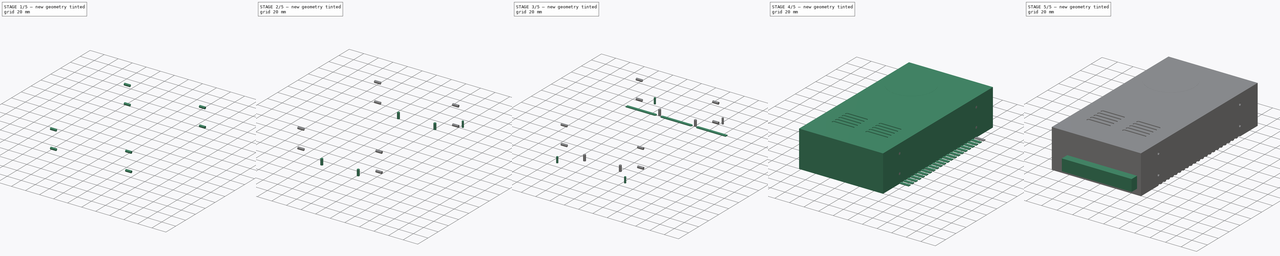
[diagram: build sequence overview — one tinted view per stage of 5, left to right]
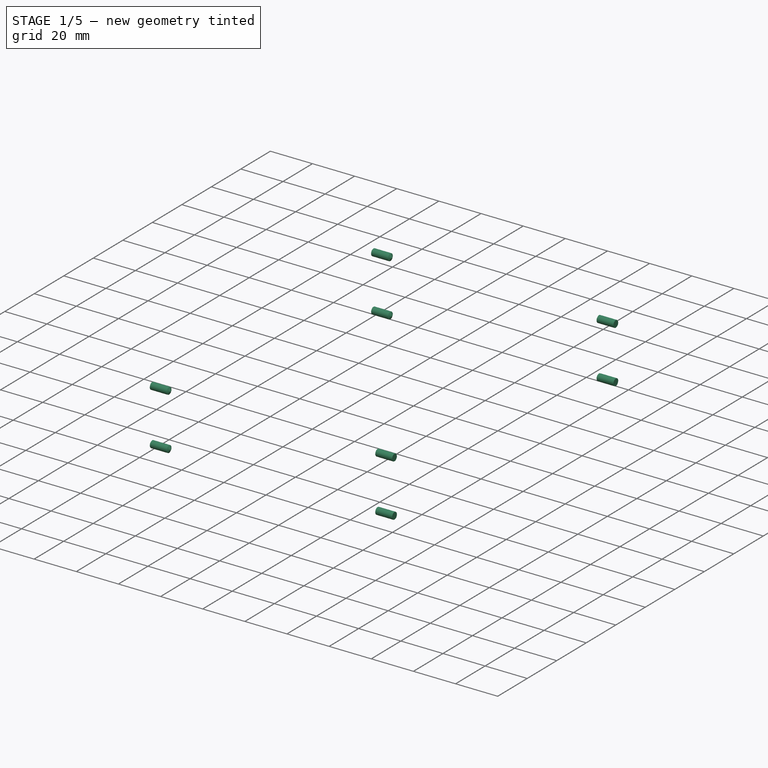
[diagram: stage 1 of 5 — iso view after this stage's code; geometry added in this stage tinted green]
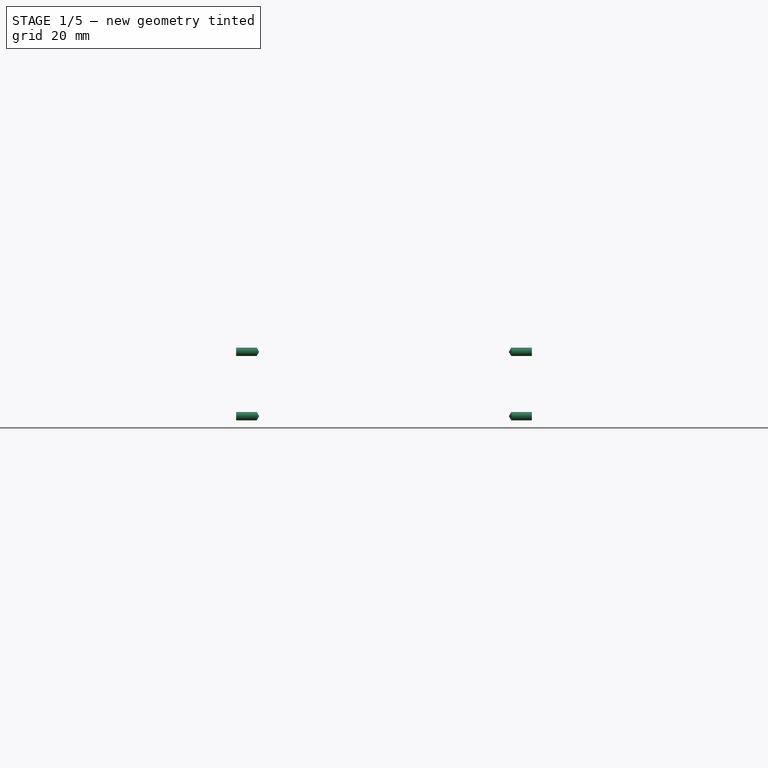
[diagram: stage 1 of 5 — front view after this stage's code; geometry added in this stage tinted green]
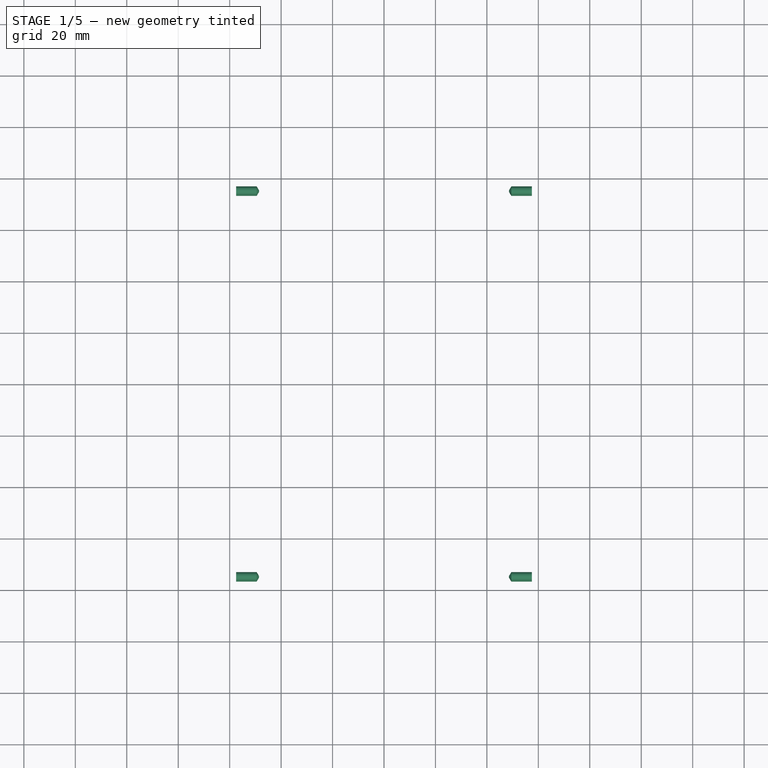
[diagram: stage 1 of 5 — top view after this stage's code; geometry added in this stage tinted green]
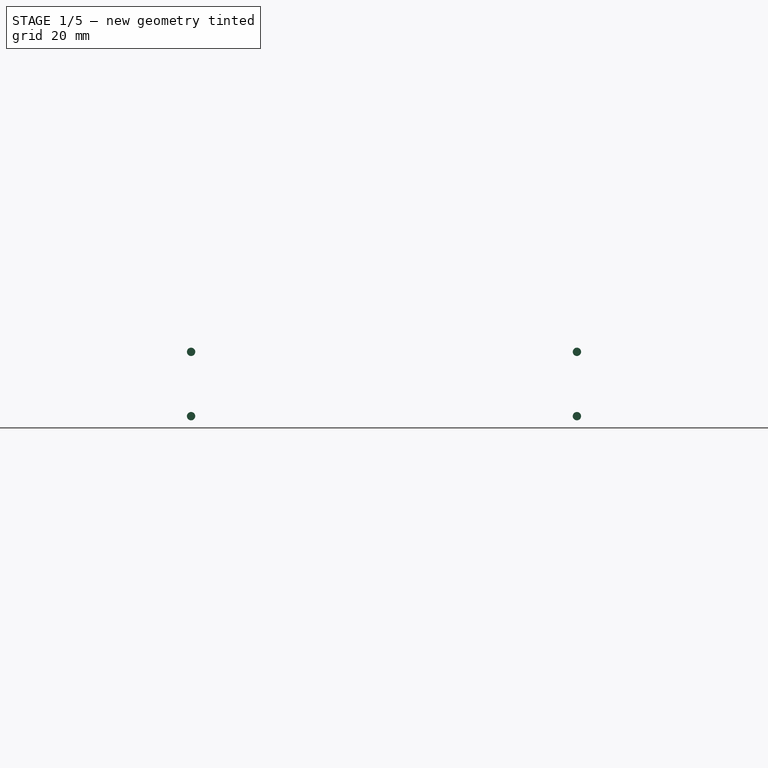
[diagram: stage 1 of 5 — right view after this stage's code; geometry added in this stage tinted green]
FCSTD DOCUMENT  (FreeCAD 0.14R3310 (Git))
Label: 37. FUENTE DE ALIMENTACIÓN
License: CC-BY 3.0
LicenseURL: http://creativecommons.org/licenses/by/3.0/
objects: Sketcher::SketchObject×7, Part::MultiFuse×7, Part::Mirroring×6, Part::Cut×5, PartDesign::Pad×4, Part::FeaturePython×3, PartDesign::Revolution×3, Part::Box×1
note: 43 computed .brp shape members not serialized (recipe doc carries the construction recipe); baked Part::Feature solids carry a one-line shape summary decoded from their .brp

FEATURE [PartDesign::Revolution] Revolution002
  Angle = 360
  Axis = (1,0,0)
  Base = (-57.5,75,12.5)
  Placement = pos=(-57.5,75,12.5) rot=(-1,0,0;4.71239rad)
  ReferenceAxis = -> Sketch006 [H_Axis]
  Sketch = -> Sketch006
FEATURE [Part::FeaturePython] Array002  # Draft array (typed FeaturePython)
  Angle = 360
  ArrayType = 0
  Axis = (0,0,1)
  Base = -> Revolution002
  Center = (0,0,0)
  IntervalX = (1,0,0)
  IntervalY = (0,1,0)
  IntervalZ = (0,0,25)
  NumberPolar = 1
  NumberX = 1
  NumberY = 1
  NumberZ = 2
FEATURE [Part::Mirroring] Part__Mirroring004  label="Array002 (Mirror #5)"
  Base = (0,0,0)
  Normal = (0,1,0)
  Source = -> Array002
FEATURE [Part::MultiFuse] Fusion005
  Shapes = -> [Array002,Part__Mirroring004]
FEATURE [Part::Mirroring] Part__Mirroring005  label="Fusion005 (Mirror #6)"
  Base = (0,0,0)
  Normal = (1,0,0)
  Source = -> Fusion005
FEATURE [Part::MultiFuse] Fusion006
  Shapes = -> [Part__Mirroring005,Fusion005]
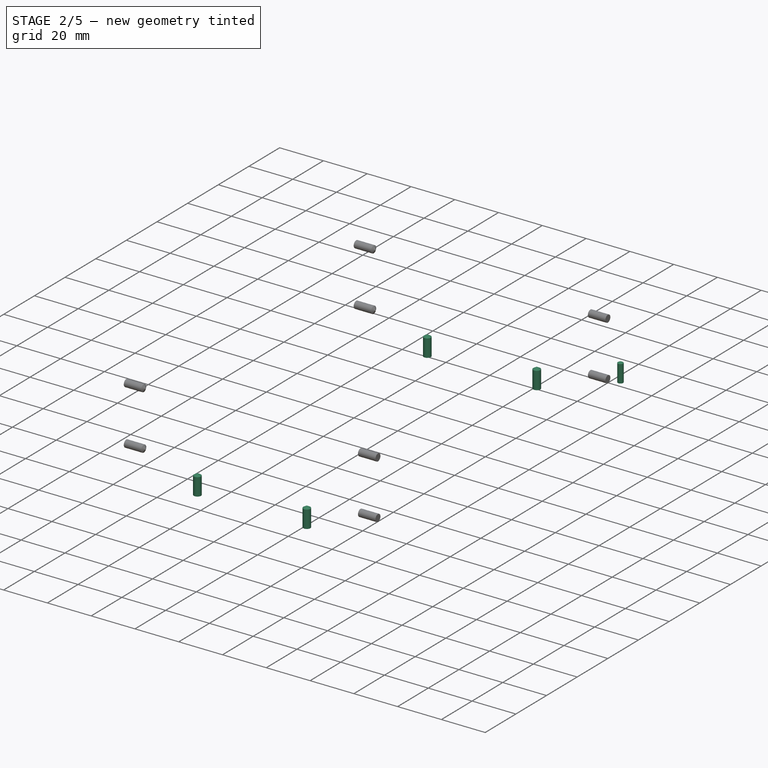
[diagram: stage 2 of 5 — iso view after this stage's code; geometry added in this stage tinted green]
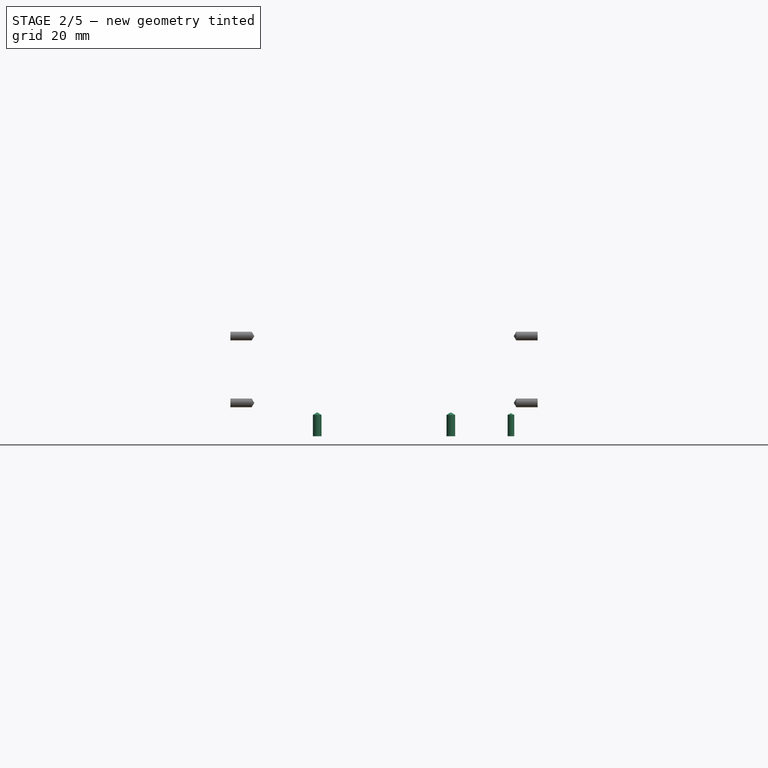
[diagram: stage 2 of 5 — front view after this stage's code; geometry added in this stage tinted green]
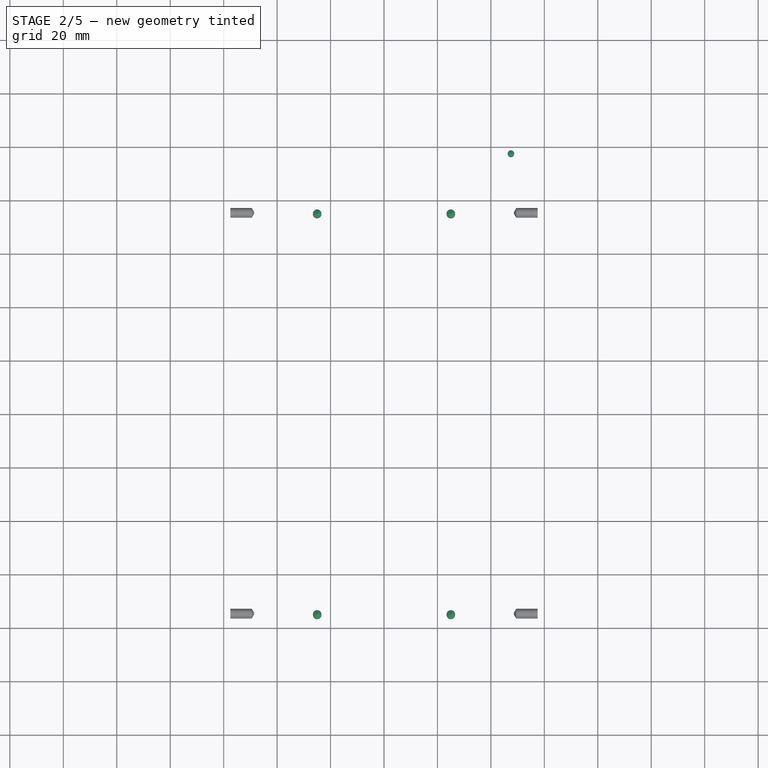
[diagram: stage 2 of 5 — top view after this stage's code; geometry added in this stage tinted green]
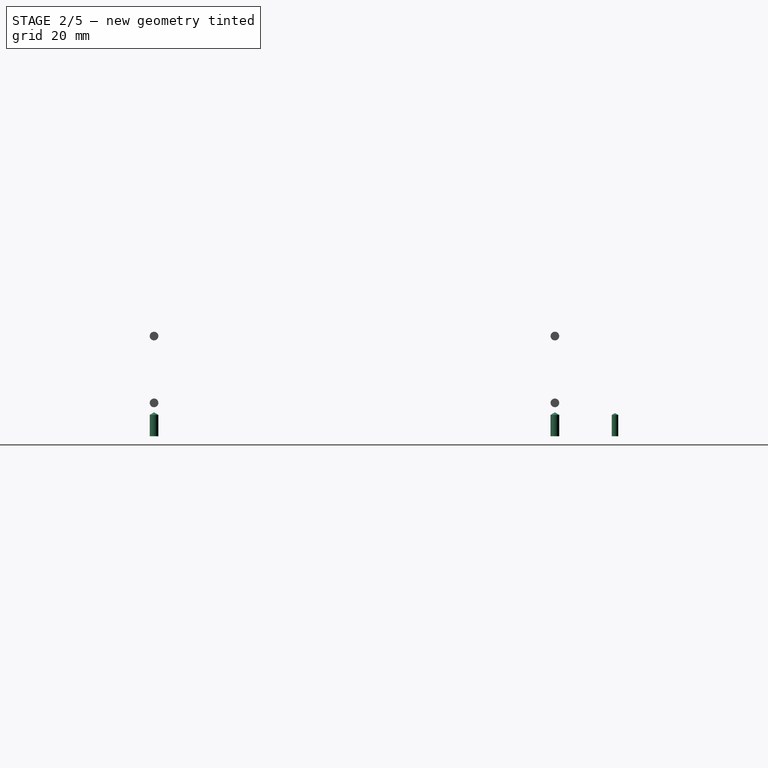
[diagram: stage 2 of 5 — right view after this stage's code; geometry added in this stage tinted green]
FEATURE [Sketcher::SketchObject] Sketch004
  Placement = pos=(47.5,97.5,0) rot=(1,0,0;1.5708rad)
  sketch-geometry (4):
    g0: LineSegment StartX=1.225 StartY=0 StartZ=0 EndX=1.225 EndY=8 EndZ=0
    g1: LineSegment StartX=1.225 StartY=8 StartZ=0 EndX=0 EndY=8.67 EndZ=0
    g2: LineSegment StartX=0 StartY=8.67 StartZ=0 EndX=0 EndY=0 EndZ=0
    g3: LineSegment StartX=0 StartY=0 StartZ=0 EndX=1.225 EndY=0 EndZ=0
  constraints (11):
    c: PointOnObject(g0,g-1)
    c: Vertical(g0)
    c: DistanceX(g-2,g0) = 1.225
    c: Distance(g0) = 8
    c: Coincident(g1,g0)
    c: PointOnObject(g1,g-2)
    c: DistanceY(g-1,g1) = 8.67
    c: Coincident(g2,g1)
    c: Coincident(g2,g-1)
    c: Coincident(g3,g-1)
    c: Coincident(g3,g0)
FEATURE [PartDesign::Revolution] Revolution
  Angle = 360
  Axis = (0,0,1)
  Base = (47.5,97.5,0)
  Placement = pos=(47.5,97.5,0) rot=(1,0,0;1.5708rad)
  ReferenceAxis = -> Sketch004 [V_Axis]
  Reversed = true
  Sketch = -> Sketch004
FEATURE [PartDesign::Revolution] Revolution001
  Angle = 360
  Axis = (0,0,1)
  Base = (25,75,0)
  Placement = pos=(25,75,0) rot=(0.57735,0.57735,0.57735;2.0944rad)
  ReferenceAxis = -> Sketch005 [V_Axis]
  Reversed = true
  Sketch = -> Sketch005
FEATURE [Part::Mirroring] Part__Mirroring002  label="Revolution001 (Mirror #3)"
  Base = (0,0,0)
  Normal = (1,0,0)
  Source = -> Revolution001
FEATURE [Part::MultiFuse] Fusion003
  Shapes = -> [Part__Mirroring002,Revolution001]
FEATURE [Part::Mirroring] Part__Mirroring003  label="Fusion003 (Mirror #4)"
  Base = (0,0,0)
  Normal = (0,1,0)
  Source = -> Fusion003
FEATURE [Part::MultiFuse] Fusion004
  Shapes = -> [Fusion003,Part__Mirroring003]
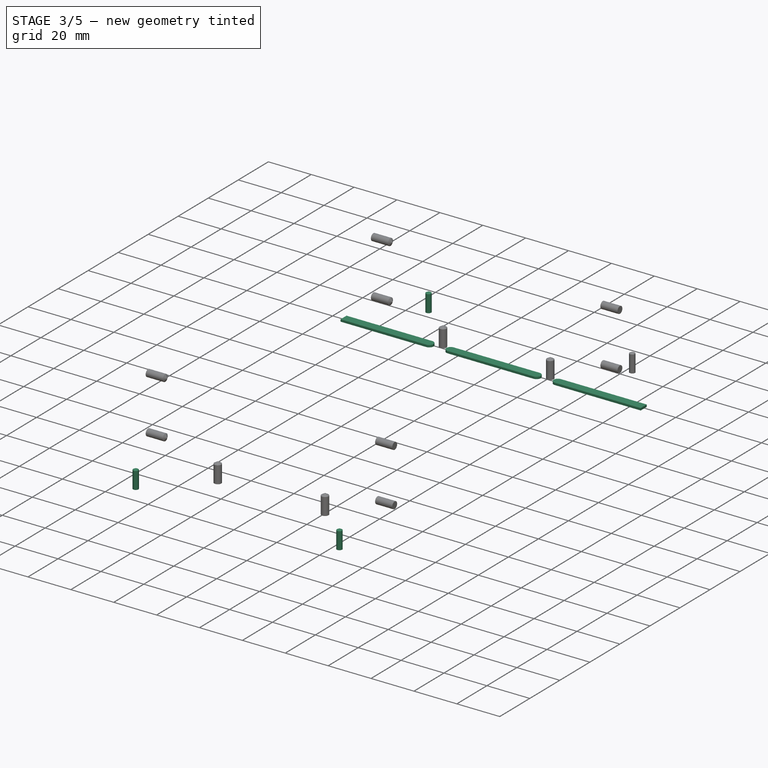
[diagram: stage 3 of 5 — iso view after this stage's code; geometry added in this stage tinted green]
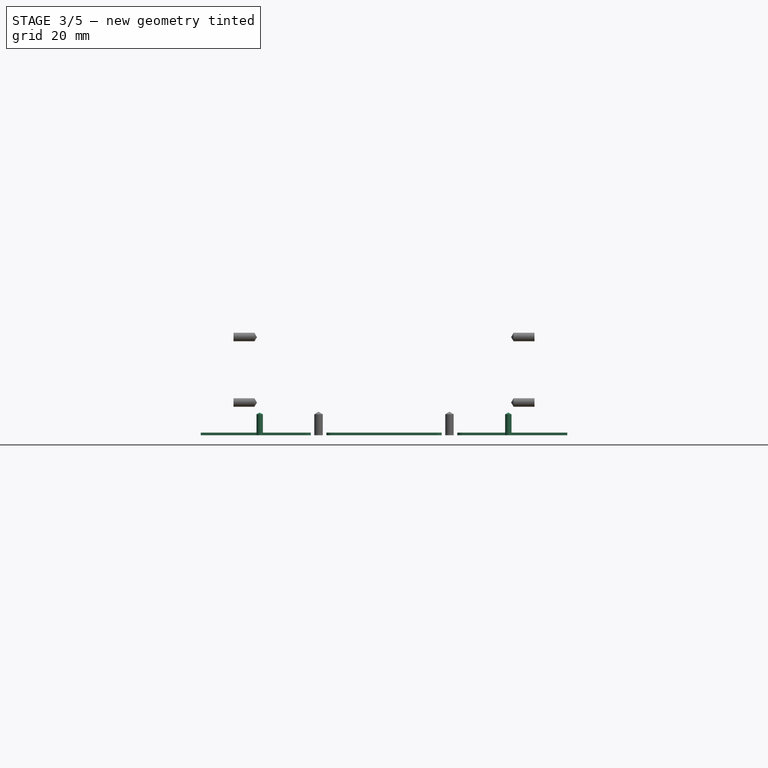
[diagram: stage 3 of 5 — front view after this stage's code; geometry added in this stage tinted green]
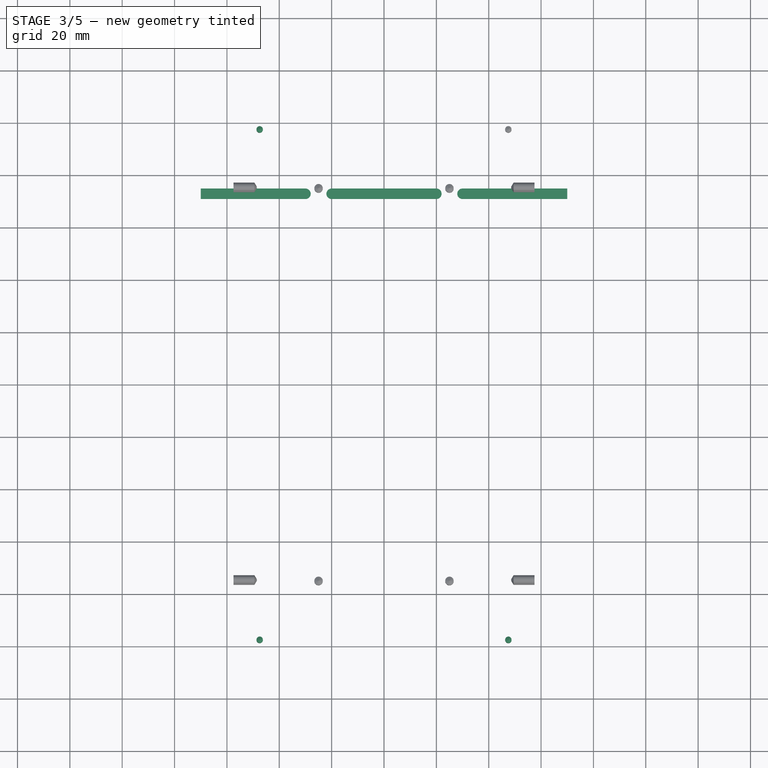
[diagram: stage 3 of 5 — top view after this stage's code; geometry added in this stage tinted green]
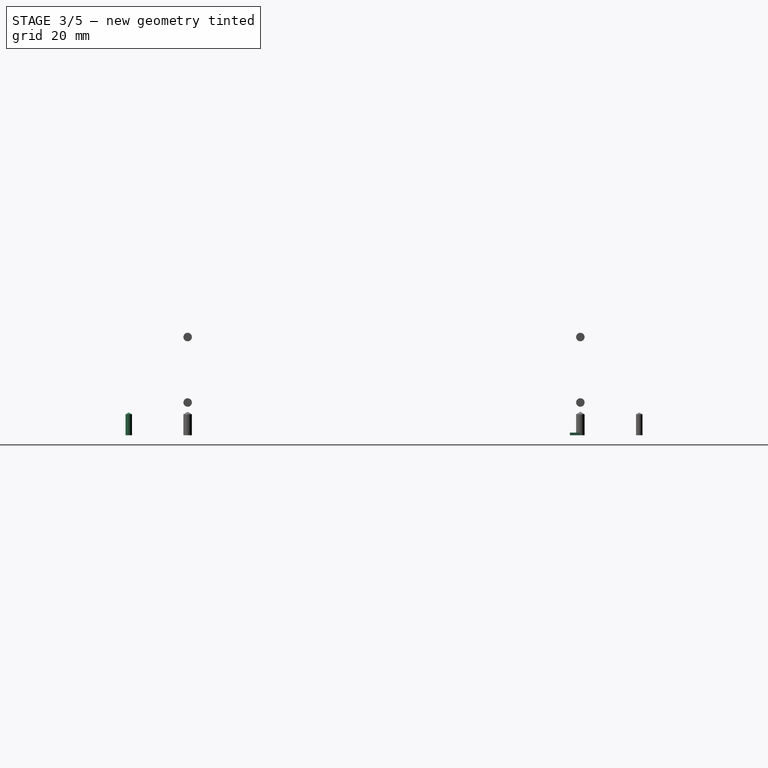
[diagram: stage 3 of 5 — right view after this stage's code; geometry added in this stage tinted green]
FEATURE [Sketcher::SketchObject] Sketch003
  sketch-geometry (13):
    g0: LineSegment StartX=-20 StartY=75 StartZ=0 EndX=20 EndY=75 EndZ=0
    g1: ArcOfCircle CenterX=20 CenterY=73 CenterZ=0 NormalX=0 NormalY=0 NormalZ=1 Radius=2 StartAngle=4.71239 EndAngle=7.85398
    g2: ArcOfCircle CenterX=-20 CenterY=73 CenterZ=0 NormalX=0 NormalY=0 NormalZ=1 Radius=2 StartAngle=1.57079 EndAngle=4.7124
    g3: LineSegment StartX=-20 StartY=71 StartZ=0 EndX=20 EndY=71 EndZ=0
    g4: LineSegment [constr] StartX=-90 StartY=73 StartZ=0 EndX=90 EndY=73 EndZ=0
    g5: LineSegment StartX=-70 StartY=75 StartZ=0 EndX=-30 EndY=75 EndZ=0
    g6: LineSegment StartX=-70 StartY=71 StartZ=0 EndX=-30 EndY=71 EndZ=0
    g7: LineSegment StartX=30 StartY=75 StartZ=0 EndX=70 EndY=75 EndZ=0
    g8: LineSegment StartX=30 StartY=71 StartZ=0 EndX=70 EndY=71 EndZ=0
    g9: ArcOfCircle CenterX=30 CenterY=73 CenterZ=0 NormalX=0 NormalY=0 NormalZ=1 Radius=2 StartAngle=1.5708 EndAngle=4.71239
    g10: ArcOfCircle CenterX=-30 CenterY=73 CenterZ=0 NormalX=0 NormalY=0 NormalZ=1 Radius=2 StartAngle=4.71238 EndAngle=7.85399
    g11: LineSegment StartX=-70 StartY=75 StartZ=0 EndX=-70 EndY=71 EndZ=0
    g12: LineSegment StartX=70 StartY=75 StartZ=0 EndX=70 EndY=71 EndZ=0
  constraints (44):
    c: Horizontal(g0)
    c: Symmetric(g0,g0,g-2)
    c: Distance(g0) = 40
    c: Coincident(g1,g0)
    c: Coincident(g2,g0)
    c: Coincident(g3,g2)
    c: Coincident(g3,g1)
    c: Tangent(g3,g2)
    c: Tangent(g1,g3)
    c: Equal(g2,g1)
    c: Tangent(g2,g0)
    c: Tangent(g0,g1)
    c: Radius(g1) = 2
    c: DistanceY(g-1,g2) = 71
    c: Horizontal(g4)
    c: Symmetric(g4,g4,g-2)
    c: PointOnObject(g2,g4)
    c: Distance(g4) = 180
    c: Horizontal(g5)
    c: Horizontal(g6)
    c: Horizontal(g7)
    c: Horizontal(g8)
    c: Equal(g8,g6)
    c: Equal(g6,g5)
    c: Equal(g5,g7)
    c: Equal(g7,g3)
    c: PointOnObject(g9,g4)
    c: Coincident(g9,g8)
    c: Coincident(g9,g7)
    c: Equal(g9,g1)
    c: Distance(g1,g9) = 10
    c: Tangent(g9,g7)
    c: Tangent(g8,g9)
    c: PointOnObject(g10,g4)
    c: Coincident(g10,g5)
    c: Coincident(g10,g6)
    c: Equal(g10,g2)
    c: Tangent(g10,g5)
    c: Tangent(g6,g10)
    c: Distance(g10,g2) = 10
    c: Coincident(g11,g5)
    c: Coincident(g11,g6)
    c: Coincident(g12,g7)
    c: Coincident(g12,g8)
FEATURE [PartDesign::Pad] Pad003
  Length = 1
  Length2 = 100
  Sketch = -> Sketch003
  Type = 0
FEATURE [Part::Mirroring] Part__Mirroring  label="Revolution (Mirror #1)"
  Base = (0,0,0)
  Normal = (0,1,0)
  Source = -> Revolution
FEATURE [Part::MultiFuse] Fusion001
  Shapes = -> [Revolution,Part__Mirroring]
FEATURE [Part::Mirroring] Part__Mirroring001  label="Fusion001 (Mirror #2)"
  Base = (0,0,0)
  Normal = (1,0,0)
  Source = -> Fusion001
FEATURE [Part::MultiFuse] Fusion002
  Shapes = -> [Part__Mirroring001,Fusion001]
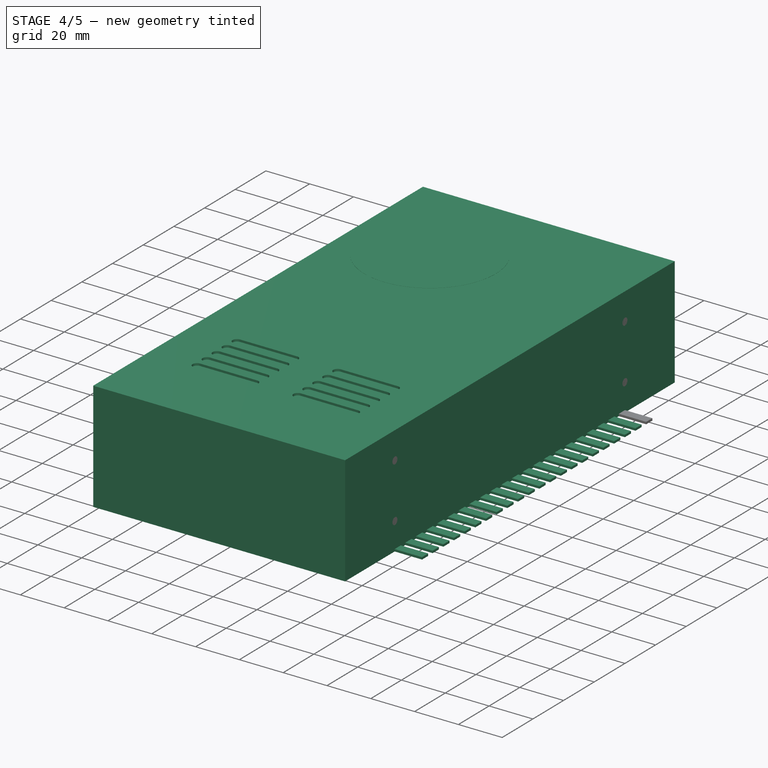
[diagram: stage 4 of 5 — iso view after this stage's code; geometry added in this stage tinted green]
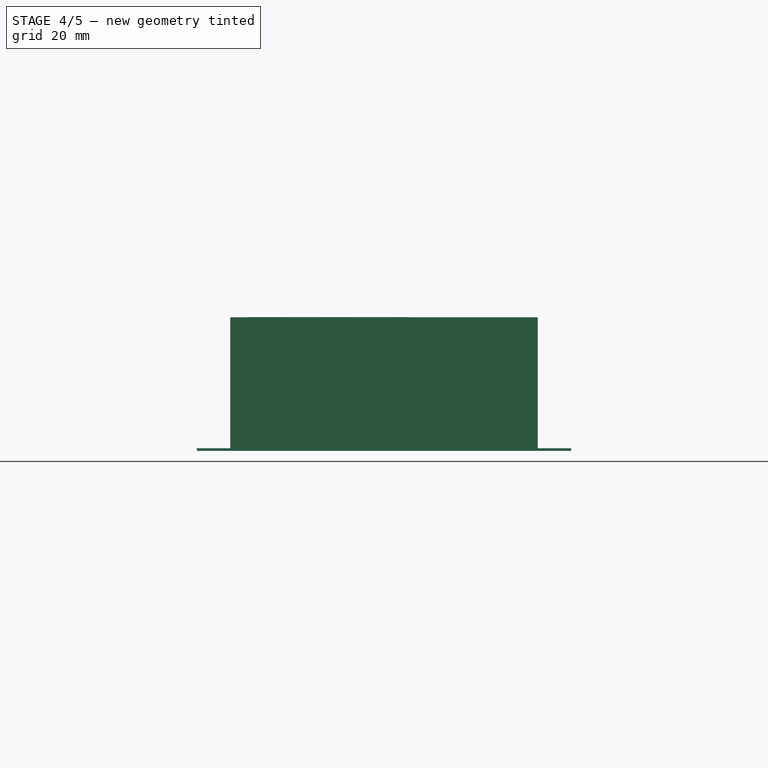
[diagram: stage 4 of 5 — front view after this stage's code; geometry added in this stage tinted green]
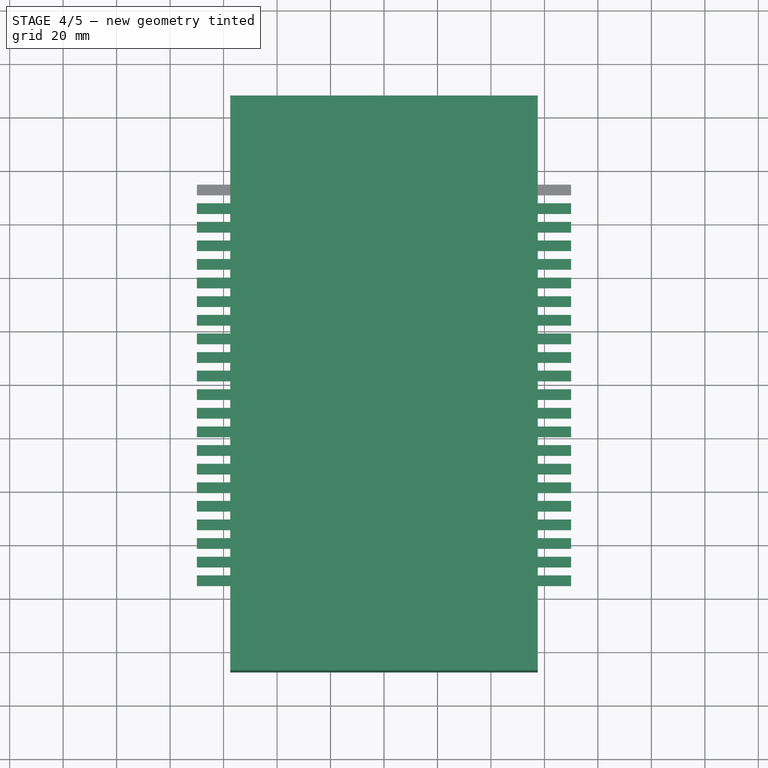
[diagram: stage 4 of 5 — top view after this stage's code; geometry added in this stage tinted green]
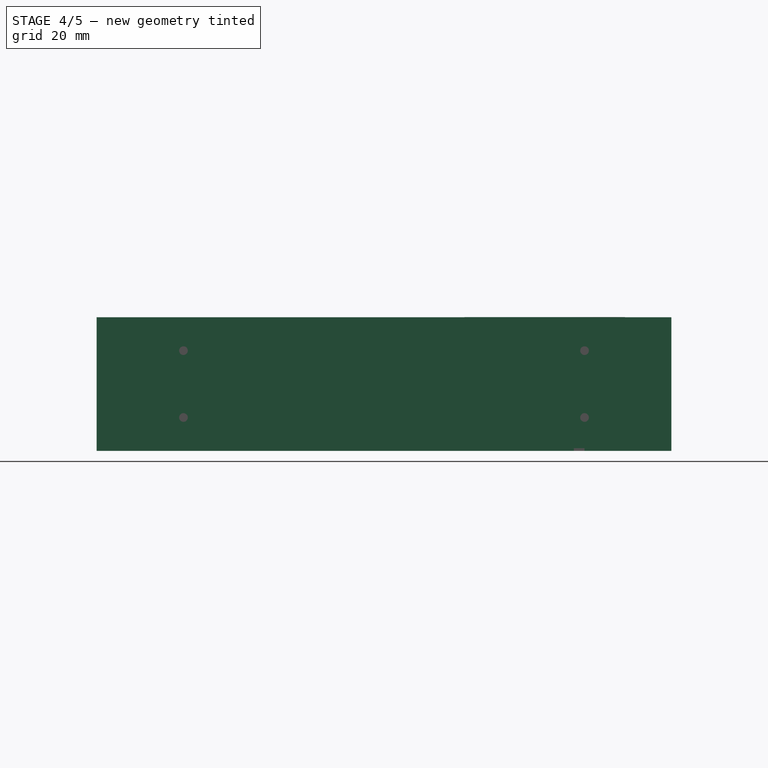
[diagram: stage 4 of 5 — right view after this stage's code; geometry added in this stage tinted green]
FEATURE [Sketcher::SketchObject] Sketch
  sketch-geometry (4):
    g0: LineSegment StartX=-57.5 StartY=107.5 StartZ=0 EndX=57.5 EndY=107.5 EndZ=0
    g1: LineSegment StartX=57.5 StartY=107.5 StartZ=0 EndX=57.5 EndY=-107.5 EndZ=0
    g2: LineSegment StartX=57.5 StartY=-107.5 StartZ=0 EndX=-57.5 EndY=-107.5 EndZ=0
    g3: LineSegment StartX=-57.5 StartY=-107.5 StartZ=0 EndX=-57.5 EndY=107.5 EndZ=0
  constraints (11):
    c: Coincident(g0,g1)
    c: Coincident(g1,g2)
    c: Coincident(g2,g3)
    c: Coincident(g3,g0)
    c: Horizontal(g0)
    c: Horizontal(g2)
    c: Vertical(g1)
    c: Vertical(g3)
    c: Symmetric(g0,g1,g-1)
    c: Distance(g0) = 115
    c: Distance(g3) = 215
FEATURE [PartDesign::Pad] Pad
  Length = 50
  Length2 = 100
  Sketch = -> Sketch
  Type = 0
FEATURE [Sketcher::SketchObject] Sketch001
  ExternalGeometry = -> [Pad]
  Placement = pos=(0,0,50) rot=(0,0,1;0rad)
  Support = -> Pad [Face6]
  sketch-geometry (1):
    g0: Circle CenterX=-21 CenterY=60 CenterZ=0 NormalX=0 NormalY=0 NormalZ=1 Radius=30
  constraints (3):
    c: Radius(g0) = 30
    c: Distance(g0,g-4) = 36.5
    c: Distance(g0,g-3) = 47.5
FEATURE [PartDesign::Pad] Pad001
  Length = 0.1
  Length2 = 100
  Midplane = true
  Reversed = true
  Sketch = -> Sketch001
  Type = 0
FEATURE [Sketcher::SketchObject] Sketch002
  Placement = pos=(0,0,50) rot=(0,0,1;0rad)
  sketch-geometry (10):
    g0: LineSegment StartX=10 StartY=-42.5 StartZ=0 EndX=36 EndY=-42.5 EndZ=0
    g1: LineSegment [constr] StartX=36 StartY=-42.5 StartZ=0 EndX=36 EndY=-46.5 EndZ=0
    g2: LineSegment StartX=36 StartY=-46.5 StartZ=0 EndX=10 EndY=-46.5 EndZ=0
    g3: LineSegment [constr] StartX=10 StartY=-46.5 StartZ=0 EndX=10 EndY=-42.5 EndZ=0
    g4: ArcOfCircle CenterX=10 CenterY=-44.5 CenterZ=0 NormalX=0 NormalY=0 NormalZ=1 Radius=2 StartAngle=1.5708 EndAngle=4.71239
    g5: ArcOfCircle CenterX=36 CenterY=-44.5 CenterZ=0 NormalX=0 NormalY=0 NormalZ=1 Radius=2 StartAngle=4.71239 EndAngle=7.85398
    g6: LineSegment StartX=-36 StartY=-42.5 StartZ=0 EndX=-10 EndY=-42.5 EndZ=0
    g7: ArcOfCircle CenterX=-10 CenterY=-44.5 CenterZ=0 NormalX=0 NormalY=0 NormalZ=1 Radius=2 StartAngle=4.71238 EndAngle=7.85399
    g8: LineSegment StartX=-10 StartY=-46.5 StartZ=0 EndX=-36 EndY=-46.5 EndZ=0
    g9: ArcOfCircle CenterX=-36 CenterY=-44.5 CenterZ=0 NormalX=0 NormalY=0 NormalZ=1 Radius=2 StartAngle=1.5708 EndAngle=4.71239
  constraints (31):
    c: Coincident(g0,g1)
    c: Coincident(g1,g2)
    c: Coincident(g2,g3)
    c: Coincident(g3,g0)
    c: Horizontal(g0)
    c: Horizontal(g2)
    c: Vertical(g1)
    c: Vertical(g3)
    c: Distance(g3) = 4
    c: Distance(g0) = 26
    c: PointOnObject(g4,g3)
    c: Coincident(g4,g0)
    c: Coincident(g4,g2)
    c: PointOnObject(g5,g1)
    c: Coincident(g5,g0)
    c: Coincident(g5,g1)
    c: DistanceX(g-2,g4) = 10
    c: DistanceY(g-1,g4) = -44.5
    c: Horizontal(g6)
    c: Coincident(g7,g6)
    c: Coincident(g8,g7)
    c: Horizontal(g8)
    c: Coincident(g9,g6)
    c: Coincident(g9,g8)
    c: Tangent(g8,g9)
    c: Tangent(g6,g9)
    c: Tangent(g6,g7)
    c: Tangent(g7,g8)
    c: Equal(g7,g4)
    c: Equal(g6,g0)
    c: Symmetric(g7,g4,g-2)
FEATURE [PartDesign::Pad] Pad002
  Length = 1
  Length2 = 100
  Placement = pos=(0,0,50) rot=(0,0,1;0rad)
  Reversed = true
  Sketch = -> Sketch002
  Type = 0
FEATURE [Part::FeaturePython] Array  # Draft array (typed FeaturePython)
  Angle = 360
  ArrayType = 0
  Axis = (0,0,1)
  Base = -> Pad002
  Center = (0,0,0)
  IntervalX = (1,0,0)
  IntervalY = (0,-6.5,0)
  IntervalZ = (0,0,1)
  NumberPolar = 1
  NumberX = 1
  NumberY = 5
  NumberZ = 1
FEATURE [Part::Cut] Cut
  Base = -> Pad001
  Tool = -> Array
FEATURE [Part::FeaturePython] Array001  # Draft array (typed FeaturePython)
  Angle = 360
  ArrayType = 0
  Axis = (0,0,1)
  Base = -> Pad003
  Center = (0,0,0)
  IntervalX = (1,0,0)
  IntervalY = (0,-6.96,0)
  IntervalZ = (0,0,1)
  NumberPolar = 1
  NumberX = 1
  NumberY = 22
  NumberZ = 1
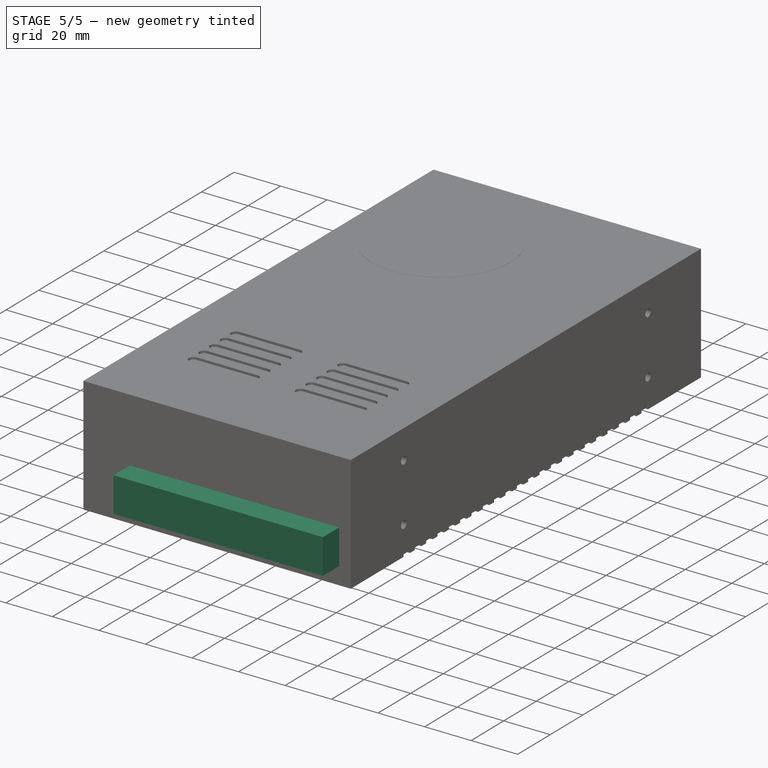
[diagram: stage 5 of 5 — iso view after this stage's code; geometry added in this stage tinted green]
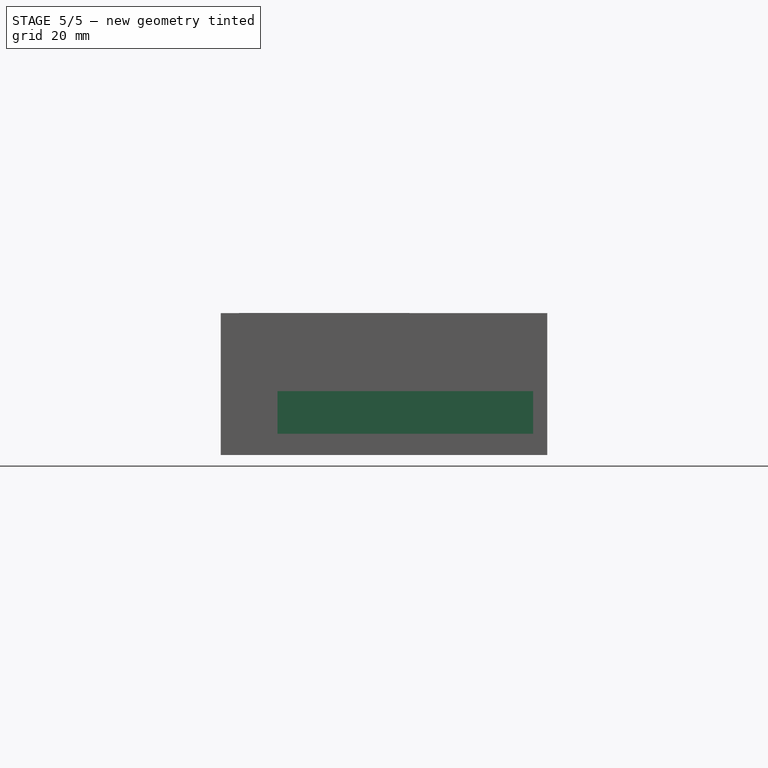
[diagram: stage 5 of 5 — front view after this stage's code; geometry added in this stage tinted green]
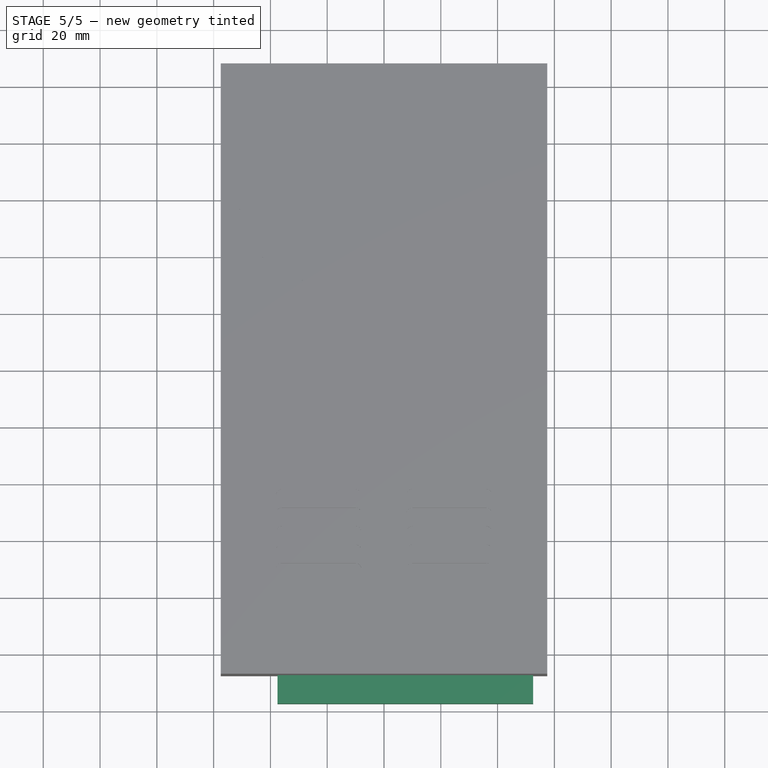
[diagram: stage 5 of 5 — top view after this stage's code; geometry added in this stage tinted green]
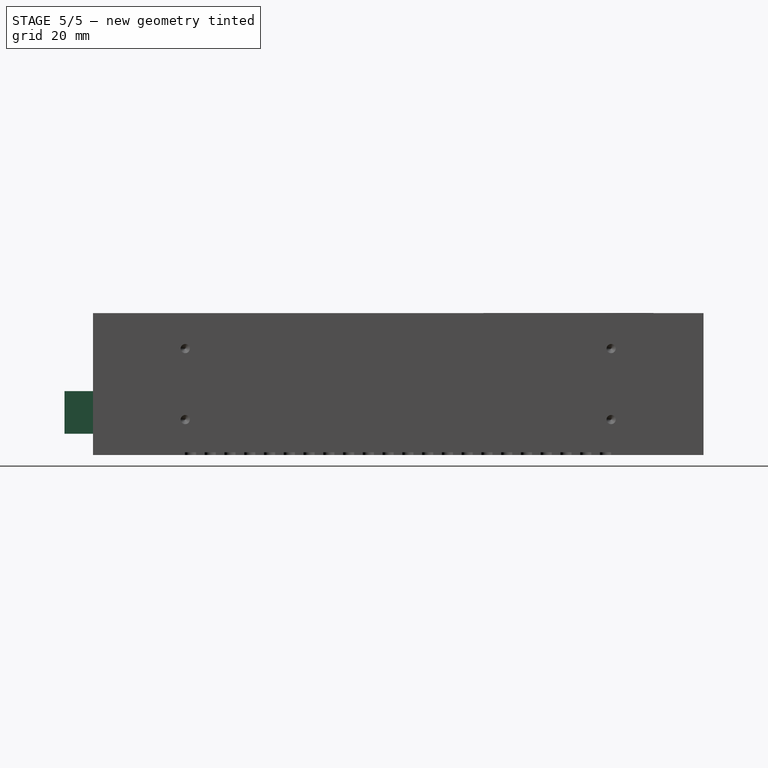
[diagram: stage 5 of 5 — right view after this stage's code; geometry added in this stage tinted green]
FEATURE [Part::Box] Box  label="Cube"
  Height = 15
  Length = 90
  Placement = pos=(-37.5,-117.5,7.5) rot=(0,0,1;0rad)
  Width = 10
FEATURE [Part::Cut] Cut001
  Base = -> Cut
  Tool = -> Array001
FEATURE [Part::MultiFuse] Fusion
  Shapes = -> [Box,Cut001]
FEATURE [Sketcher::SketchObject] Sketch005
  Placement = pos=(25,75,0) rot=(0.57735,0.57735,0.57735;2.0944rad)
  sketch-geometry (4):
    g0: LineSegment StartX=0 StartY=0 StartZ=0 EndX=1.62 EndY=0 EndZ=0
    g1: LineSegment StartX=1.62 StartY=0 StartZ=0 EndX=1.62 EndY=8 EndZ=0
    g2: LineSegment StartX=1.62 StartY=8 StartZ=0 EndX=0 EndY=8.9735 EndZ=0
    g3: LineSegment StartX=0 StartY=8.9735 StartZ=0 EndX=0 EndY=0 EndZ=0
  constraints (11):
    c: Coincident(g-1,g0)
    c: Coincident(g0,g1)
    c: Vertical(g1)
    c: Coincident(g1,g2)
    c: PointOnObject(g2,g-2)
    c: Coincident(g2,g3)
    c: Coincident(g3,g0)
    c: Distance(g0) = 1.62
    c: Distance(g1) = 8
    c: Distance(g2) = 1.89
    c: PointOnObject(g0,g-1)
FEATURE [Part::Cut] Cut002
  Base = -> Fusion
  Tool = -> Fusion002
FEATURE [Sketcher::SketchObject] Sketch006
  Placement = pos=(-57.5,75,12.5) rot=(-1,0,0;4.71239rad)
  sketch-geometry (4):
    g0: LineSegment StartX=0 StartY=1.62 StartZ=0 EndX=8 EndY=1.62 EndZ=0
    g1: LineSegment StartX=8 StartY=1.62 StartZ=0 EndX=8.9735 EndY=0 EndZ=0
    g2: LineSegment StartX=8.9735 StartY=0 StartZ=0 EndX=0 EndY=0 EndZ=0
    g3: LineSegment StartX=0 StartY=0 StartZ=0 EndX=0 EndY=1.62 EndZ=0
  constraints (11):
    c: PointOnObject(g0,g-2)
    c: Horizontal(g0)
    c: Coincident(g0,g1)
    c: PointOnObject(g1,g-1)
    c: Coincident(g1,g2)
    c: Coincident(g2,g-1)
    c: Coincident(g2,g3)
    c: Coincident(g3,g0)
    c: Distance(g0) = 8
    c: Distance(g3) = 1.62
    c: Distance(g1) = 1.89
FEATURE [Part::Cut] Cut003
  Base = -> Cut002
  Tool = -> Fusion004
FEATURE [Part::Cut] Cut004
  Base = -> Cut003
  Tool = -> Fusion006
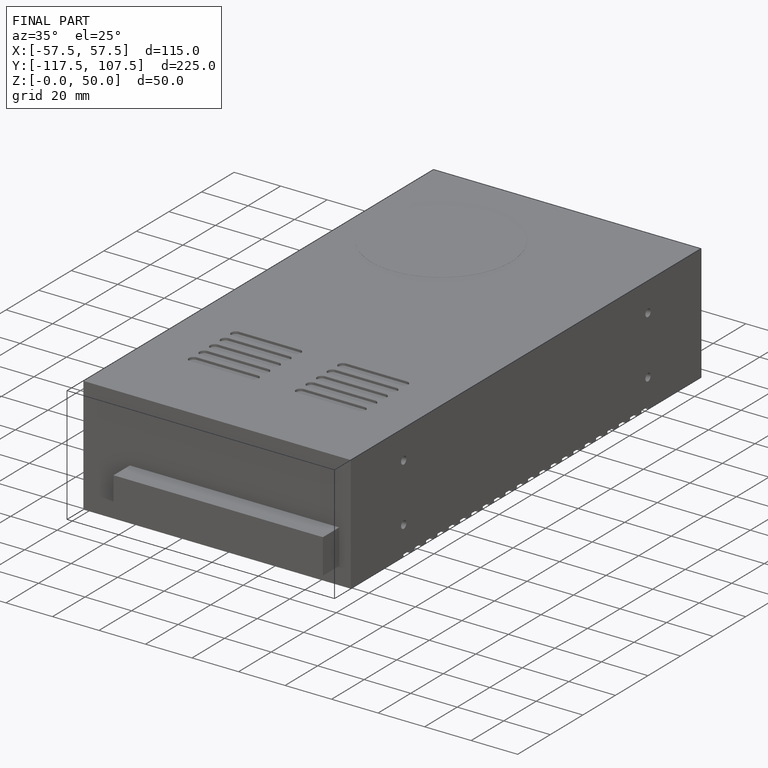
[diagram: finished part — iso view with bounding-box wireframe]
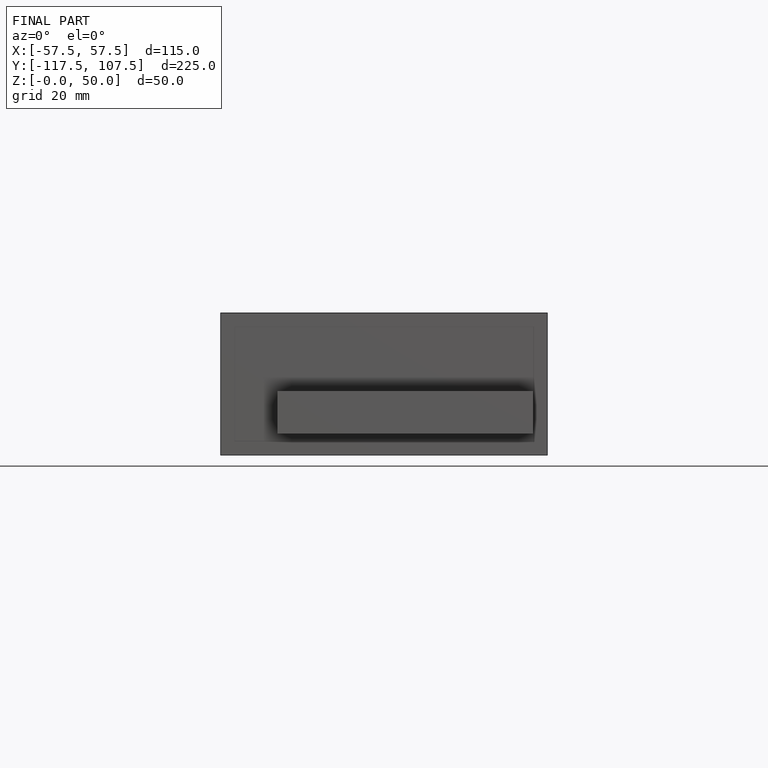
[diagram: finished part — front view with bounding-box wireframe]
